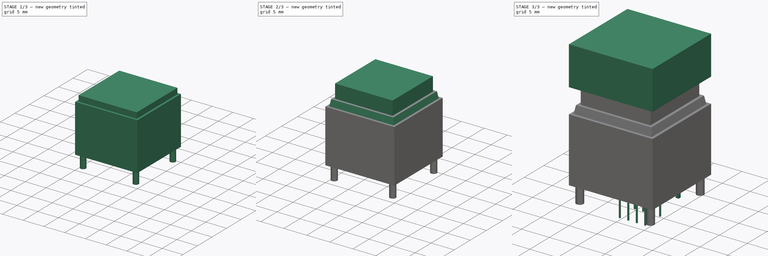
[diagram: build sequence overview — one tinted view per stage of 3, left to right]
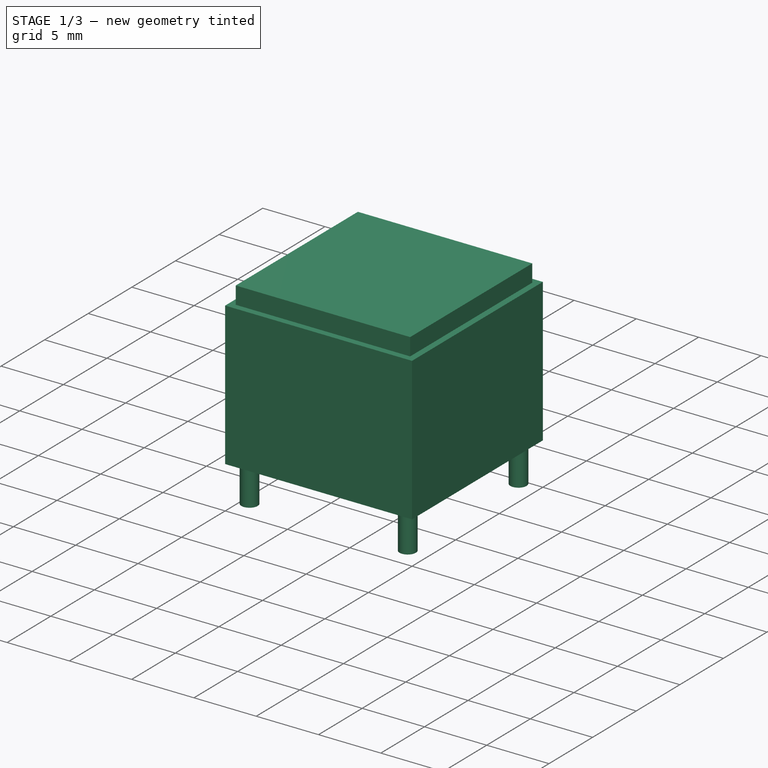
[diagram: stage 1 of 3 — iso view after this stage's code; geometry added in this stage tinted green]
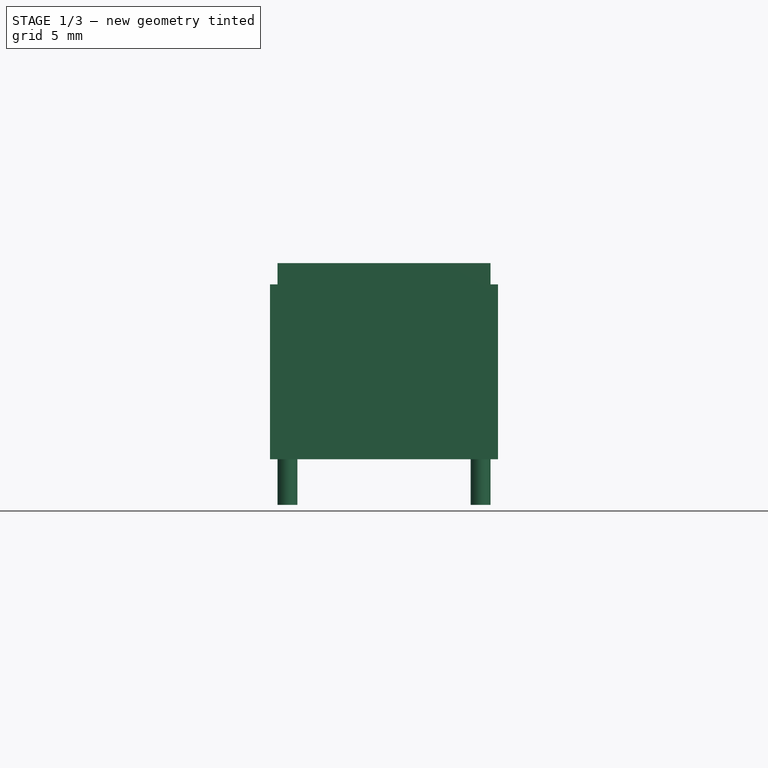
[diagram: stage 1 of 3 — front view after this stage's code; geometry added in this stage tinted green]
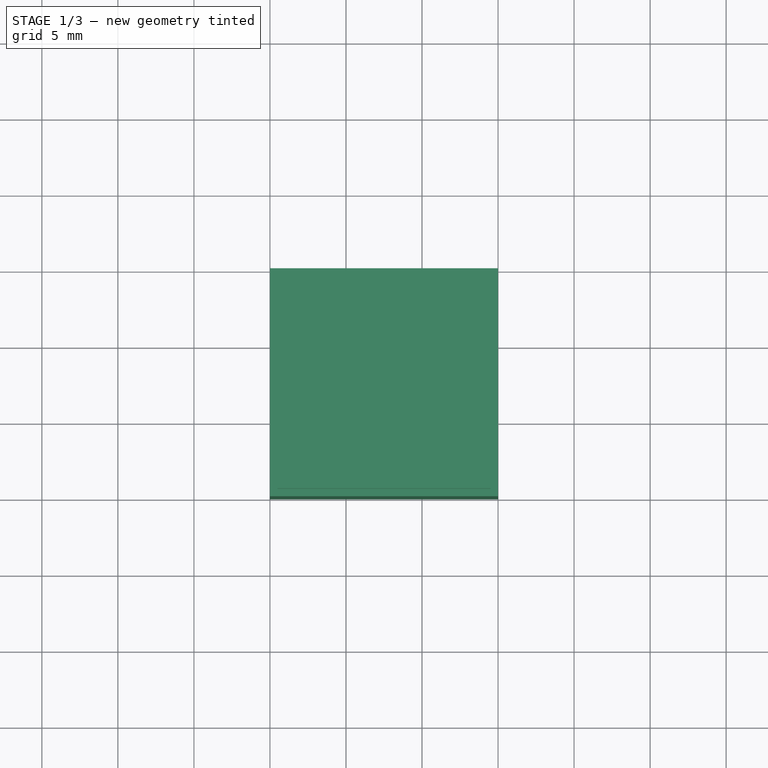
[diagram: stage 1 of 3 — top view after this stage's code; geometry added in this stage tinted green]
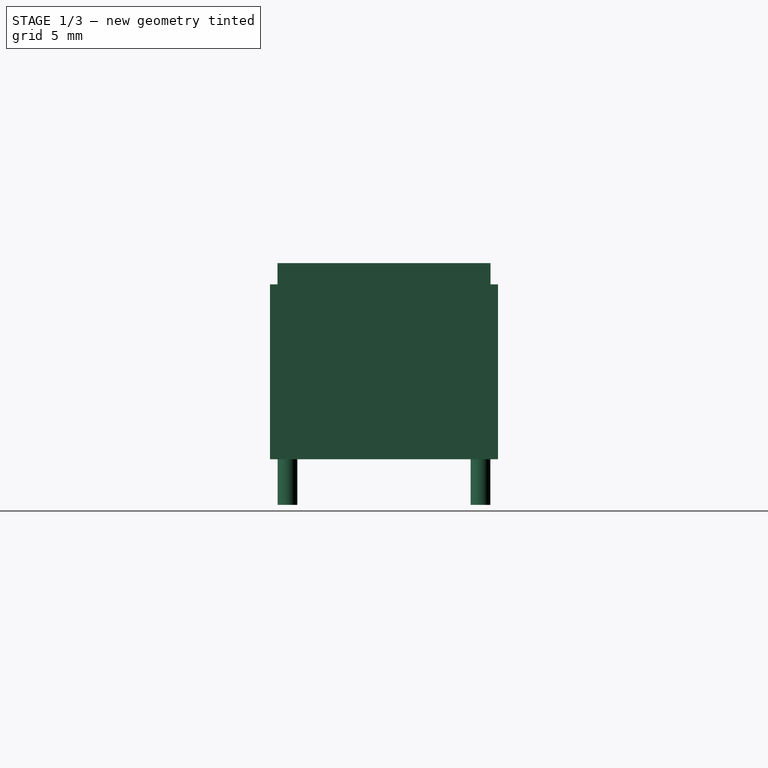
[diagram: stage 1 of 3 — right view after this stage's code; geometry added in this stage tinted green]
FCSTD DOCUMENT  (FreeCAD 0.19R24291 (Git))
Label: PB06-B-WT-RGB-NN-QY
License: All rights reserved
LicenseURL: http://en.wikipedia.org/wiki/All_rights_reserved
objects: Sketcher::SketchObject×7, PartDesign::Pad×7, PartDesign::Plane×4, PartDesign::Chamfer×1, PartDesign::Body×1
note: 28 computed .brp shape members not serialized (recipe doc carries the construction recipe); baked Part::Feature solids carry a one-line shape summary decoded from their .brp

FEATURE [Sketcher::SketchObject] Sketch  label="Base"
  FullyConstrained = true
  MapMode = 5
  Support = -> [XY_Plane]
  sketch-geometry (4):
    g0: LineSegment StartX=0 StartY=0 StartZ=0 EndX=15 EndY=0 EndZ=0
    g1: LineSegment StartX=15 StartY=0 StartZ=0 EndX=15 EndY=15 EndZ=0
    g2: LineSegment StartX=15 StartY=15 StartZ=0 EndX=0 EndY=15 EndZ=0
    g3: LineSegment StartX=0 StartY=15 StartZ=0 EndX=0 EndY=0 EndZ=0
  constraints (11):
    c: Coincident(g0,g1)
    c: Coincident(g1,g2)
    c: Coincident(g2,g3)
    c: Coincident(g3,g0)
    c: Horizontal(g0)
    c: Horizontal(g2)
    c: Vertical(g1)
    c: Vertical(g3)
    c: Coincident(g0,g-1)
    c: DistanceY(g3,g3) = 15
    c: DistanceX(g2,g2) = 15
FEATURE [PartDesign::Pad] Pad
  Direction = (1,1,1)
  Length = 11.5
  Length2 = 100
  Profile = -> Sketch
  Type = 0
FEATURE [PartDesign::Plane] DatumPlane
  Length = 60
  MapMode = 2
  ResizeMode = 0
  Support = -> [Pad]
  Width = 60
FEATURE [Sketcher::SketchObject] Sketch001
  ExternalGeometry = -> [Sketch]
  FullyConstrained = true
  MapMode = 5
  Support = -> [DatumPlane]
  sketch-geometry (4):
    g0: Circle CenterX=1.15 CenterY=1.15 CenterZ=0 NormalX=0 NormalY=0 NormalZ=1 AngleXU=0 Radius=0.65
    g1: Circle CenterX=1.15 CenterY=13.85 CenterZ=0 NormalX=0 NormalY=0 NormalZ=1 AngleXU=0 Radius=0.65
    g2: Circle CenterX=13.85 CenterY=13.85 CenterZ=0 NormalX=0 NormalY=0 NormalZ=1 AngleXU=0 Radius=0.65
    g3: Circle CenterX=13.85 CenterY=1.15 CenterZ=0 NormalX=0 NormalY=0 NormalZ=1 AngleXU=0 Radius=0.65
  constraints (12):
    c: Diameter(g0) = 1.3
    c: Diameter(g2) = 1.3
    c: Diameter(g3) = 1.3
    c: Diameter(g1) = 1.3
    c: Distance(g0,g-5) = 1.15
    c: Distance(g0,g-4) = 1.15
    c: Distance(g3,g-5) = 1.15
    c: Distance(g3,g-6) = 1.15
    c: Distance(g2,g-6) = 1.15
    c: Distance(g2,g-3) = 1.15
    c: Distance(g1,g-4) = 1.15
    c: Distance(g1,g-3) = 1.15
FEATURE [PartDesign::Pad] Pad001
  BaseFeature = -> Pad
  Direction = (1,1,1)
  Length = 3
  Length2 = 100
  Profile = -> Sketch001
  Reversed = true
  Type = 0
FEATURE [PartDesign::Plane] DatumPlane001
  Length = 60
  MapMode = 5
  Placement = pos=(0,0,11.5) rot=(0,0,1;0rad)
  ResizeMode = 0
  Support = -> [Pad001]
  Width = 60
FEATURE [Sketcher::SketchObject] Sketch002
  ExternalGeometry = -> [Pad001]
  FullyConstrained = true
  MapMode = 5
  Placement = pos=(0,0,11.5) rot=(0,0,1;0rad)
  Support = -> [DatumPlane001]
  sketch-geometry (4):
    g0: LineSegment StartX=0.5 StartY=14.5 StartZ=0 EndX=14.5 EndY=14.5 EndZ=0
    g1: LineSegment StartX=14.5 StartY=14.5 StartZ=0 EndX=14.5 EndY=0.5 EndZ=0
    g2: LineSegment StartX=14.5 StartY=0.5 StartZ=0 EndX=0.5 EndY=0.5 EndZ=0
    g3: LineSegment StartX=0.5 StartY=0.5 StartZ=0 EndX=0.5 EndY=14.5 EndZ=0
  constraints (12):
    c: Coincident(g0,g1)
    c: Coincident(g1,g2)
    c: Coincident(g2,g3)
    c: Coincident(g3,g0)
    c: Horizontal(g0)
    c: Horizontal(g2)
    c: Vertical(g1)
    c: Vertical(g3)
    c: Distance(g0,g-3) = 0.5
    c: Distance(g1,g-5) = 0.5
    c: Distance(g0,g-6) = 0.5
    c: Distance(g0,g-4) = 0.5
FEATURE [PartDesign::Pad] Pad002
  BaseFeature = -> Pad001
  Direction = (1,1,1)
  Length = 1.4
  Length2 = 100
  Profile = -> Sketch002
  Type = 0
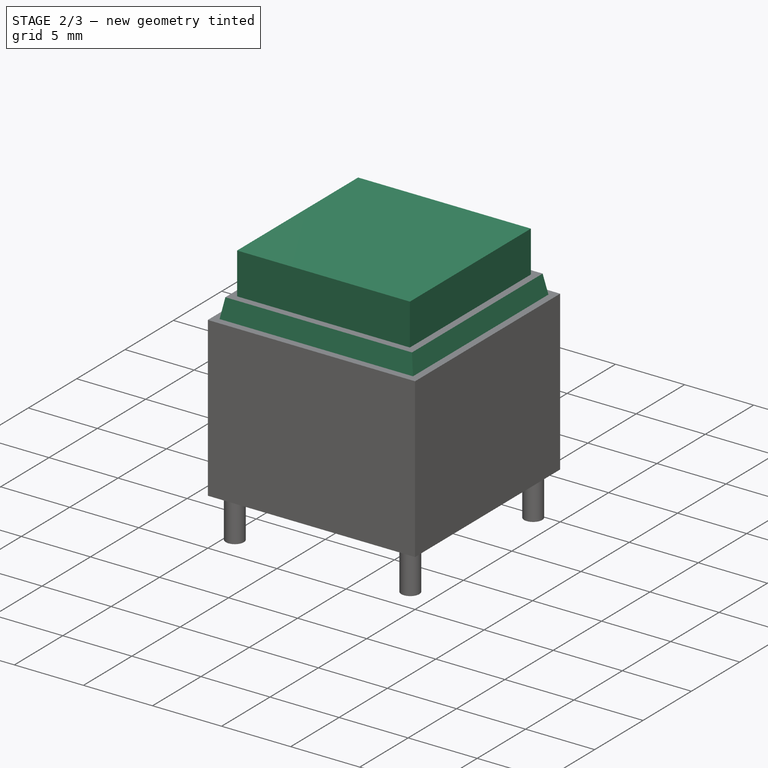
[diagram: stage 2 of 3 — iso view after this stage's code; geometry added in this stage tinted green]
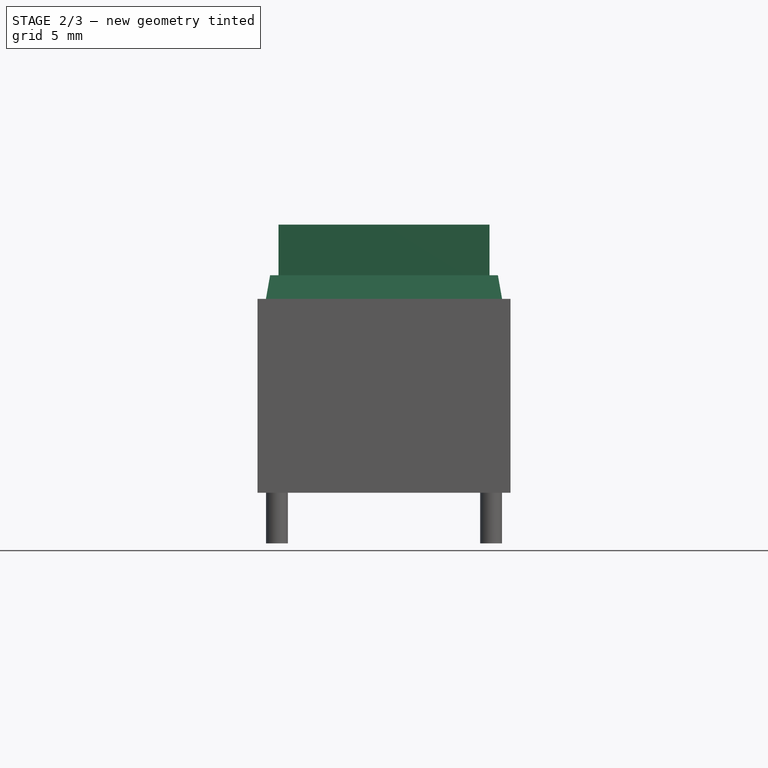
[diagram: stage 2 of 3 — front view after this stage's code; geometry added in this stage tinted green]
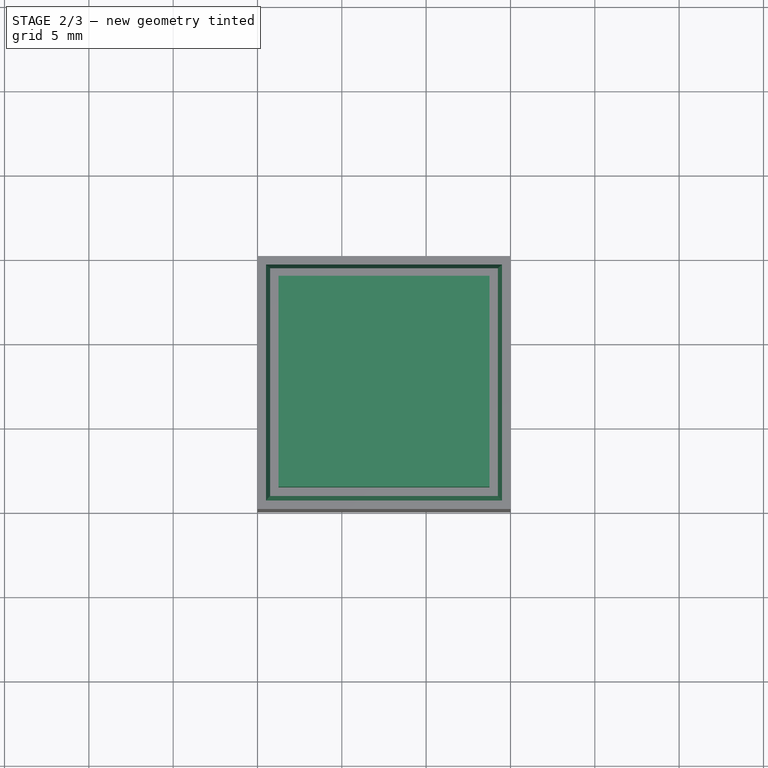
[diagram: stage 2 of 3 — top view after this stage's code; geometry added in this stage tinted green]
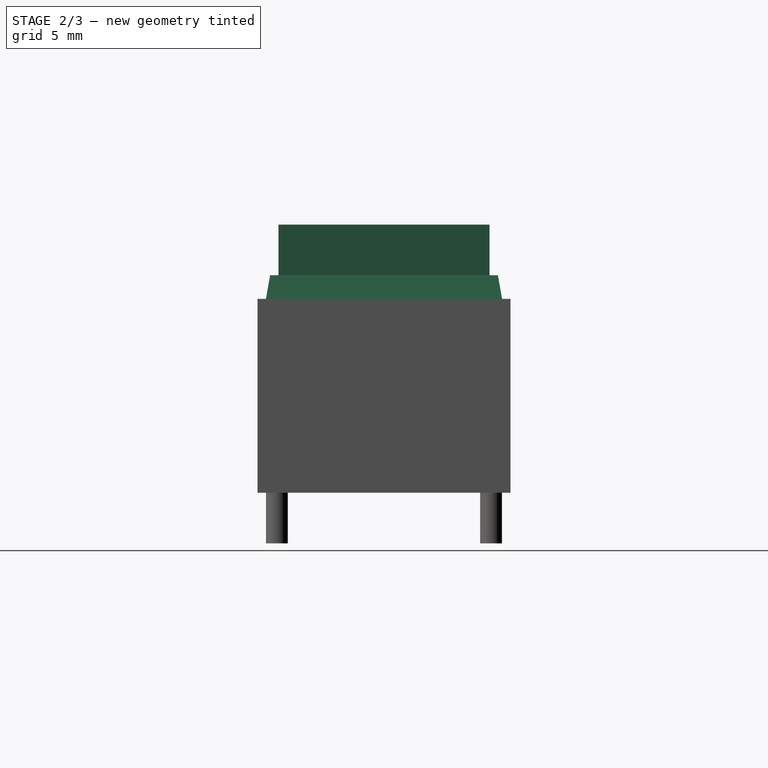
[diagram: stage 2 of 3 — right view after this stage's code; geometry added in this stage tinted green]
FEATURE [PartDesign::Chamfer] Chamfer
  Angle = 10
  Base = -> Pad002 [Edge36,Edge35,Edge33,Edge31]
  BaseFeature = -> Pad002
  ChamferType = 2
  FlipDirection = false
  Size = 1.399
  Size2 = 1
  SupportTransform = false
FEATURE [PartDesign::Plane] DatumPlane002
  Length = 60
  MapMode = 5
  Placement = pos=(0,0,12.9) rot=(0,0,1;0rad)
  ResizeMode = 0
  Support = -> [Chamfer]
  Width = 60
FEATURE [Sketcher::SketchObject] Sketch003
  ExternalGeometry = -> [Chamfer]
  FullyConstrained = true
  MapMode = 5
  Placement = pos=(0,0,12.9) rot=(0,0,1;0rad)
  Support = -> [DatumPlane002]
  sketch-geometry (4):
    g0: LineSegment StartX=1.24668 StartY=13.7533 StartZ=0 EndX=13.7533 EndY=13.7533 EndZ=0
    g1: LineSegment StartX=13.7533 StartY=13.7533 StartZ=0 EndX=13.7533 EndY=1.24668 EndZ=0
    g2: LineSegment StartX=13.7533 StartY=1.24668 StartZ=0 EndX=1.24668 EndY=1.24668 EndZ=0
    g3: LineSegment StartX=1.24668 StartY=1.24668 StartZ=0 EndX=1.24668 EndY=13.7533 EndZ=0
  constraints (12):
    c: Coincident(g0,g1)
    c: Coincident(g1,g2)
    c: Coincident(g2,g3)
    c: Coincident(g3,g0)
    c: Horizontal(g0)
    c: Horizontal(g2)
    c: Vertical(g1)
    c: Vertical(g3)
    c: Distance(g0,g-6) = 0.5
    c: Distance(g1,g-5) = 0.5
    c: Distance(g2,g-4) = 0.5
    c: Distance(g0,g-3) = 0.5
FEATURE [PartDesign::Pad] Pad003
  BaseFeature = -> Chamfer
  Direction = (1,1,1)
  Length = 3
  Length2 = 100
  Profile = -> Sketch003
  Type = 0
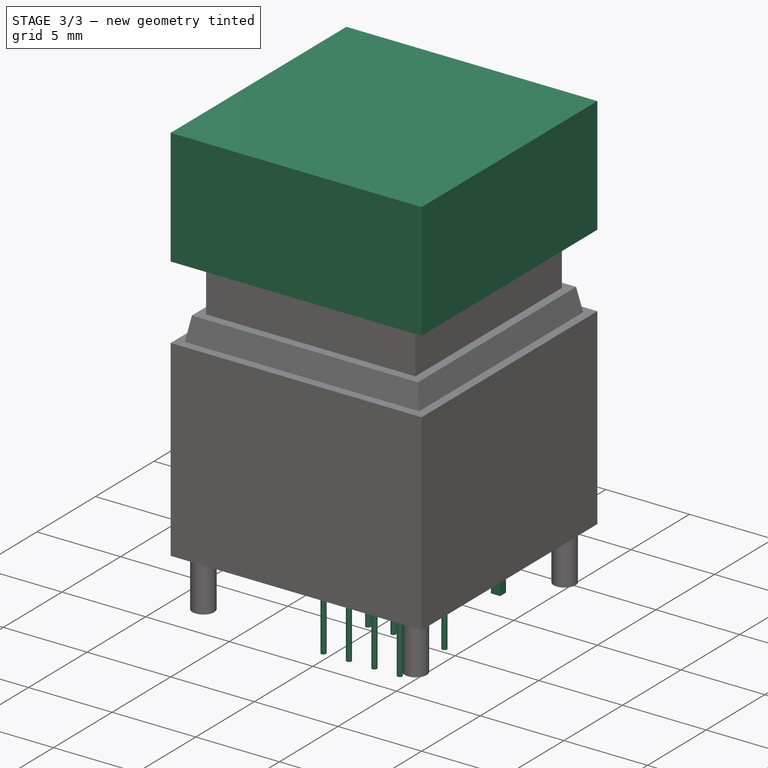
[diagram: stage 3 of 3 — iso view after this stage's code; geometry added in this stage tinted green]
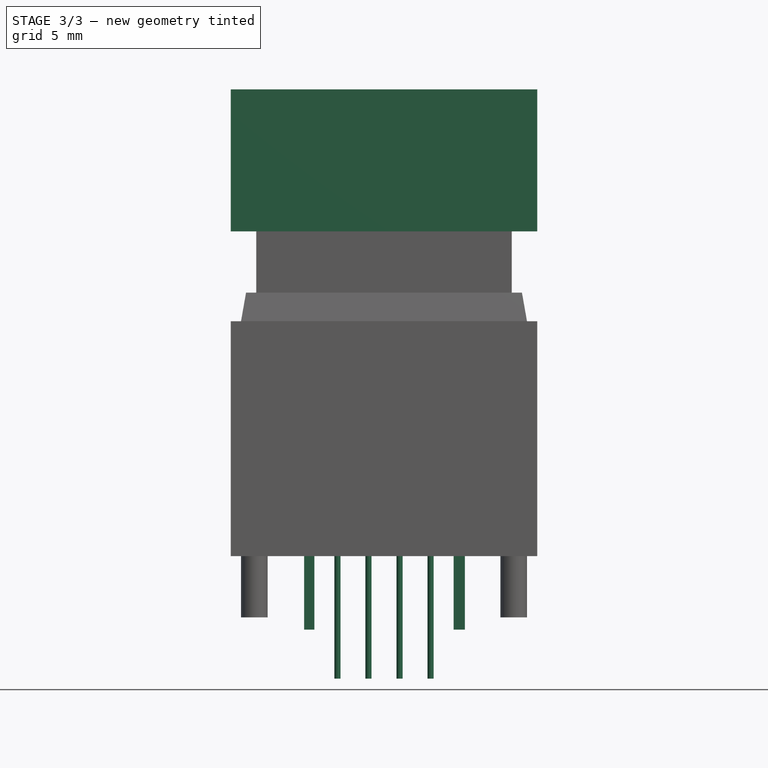
[diagram: stage 3 of 3 — front view after this stage's code; geometry added in this stage tinted green]
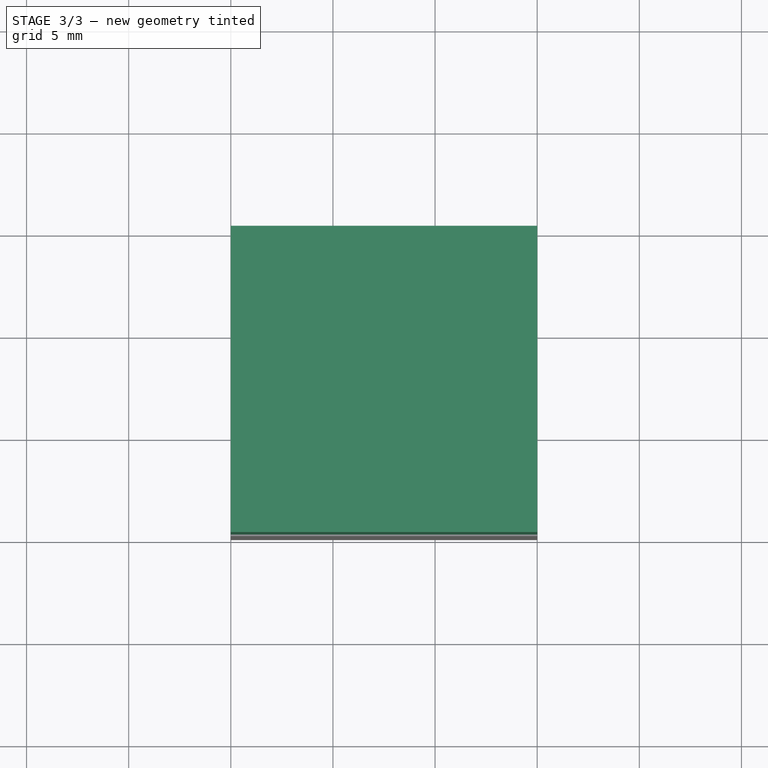
[diagram: stage 3 of 3 — top view after this stage's code; geometry added in this stage tinted green]
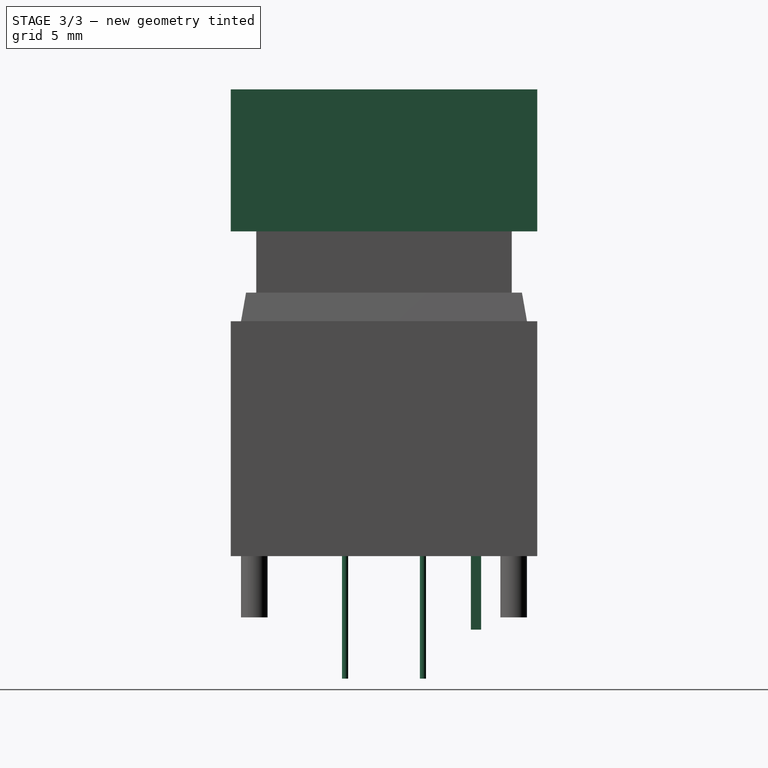
[diagram: stage 3 of 3 — right view after this stage's code; geometry added in this stage tinted green]
FEATURE [PartDesign::Plane] DatumPlane003
  Length = 60
  MapMode = 5
  Placement = pos=(0,0,15.9) rot=(0,0,1;0rad)
  ResizeMode = 0
  Support = -> [Pad003]
  Width = 60
FEATURE [Sketcher::SketchObject] Sketch004
  ExternalGeometry = -> [Pad003]
  FullyConstrained = true
  MapMode = 5
  Placement = pos=(0,0,15.9) rot=(0,0,1;0rad)
  Support = -> [Pad003]
  sketch-geometry (4):
    g0: LineSegment StartX=0 StartY=15 StartZ=0 EndX=15 EndY=15 EndZ=0
    g1: LineSegment StartX=15 StartY=15 StartZ=0 EndX=15 EndY=0 EndZ=0
    g2: LineSegment StartX=15 StartY=0 StartZ=0 EndX=0 EndY=0 EndZ=0
    g3: LineSegment StartX=0 StartY=0 StartZ=0 EndX=0 EndY=15 EndZ=0
  constraints (10):
    c: Coincident(g0,g1)
    c: Coincident(g1,g2)
    c: Coincident(g2,g3)
    c: Coincident(g3,g0)
    c: Horizontal(g0)
    c: Horizontal(g2)
    c: Vertical(g1)
    c: Vertical(g3)
    c: Coincident(g0,g-6)
    c: Coincident(g1,g-5)
FEATURE [PartDesign::Pad] Pad004
  BaseFeature = -> Pad003
  Direction = (1,1,1)
  Length = 6.95
  Length2 = 100
  Profile = -> Sketch004
  Type = 0
FEATURE [Sketcher::SketchObject] Sketch005
  ExternalGeometry = -> [Sketch,Sketch001]
  FullyConstrained = true
  MapMode = 5
  Support = -> [DatumPlane]
  sketch-geometry (10):
    g0: Circle CenterX=5.22 CenterY=5.595 CenterZ=0 NormalX=0 NormalY=0 NormalZ=1 AngleXU=0 Radius=0.15
    g1: Circle CenterX=9.78 CenterY=5.595 CenterZ=0 NormalX=0 NormalY=0 NormalZ=1 AngleXU=0 Radius=0.15
    g2: Circle CenterX=5.22 CenterY=9.405 CenterZ=0 NormalX=0 NormalY=0 NormalZ=1 AngleXU=0 Radius=0.15
    g3: Circle CenterX=6.74 CenterY=9.405 CenterZ=0 NormalX=0 NormalY=0 NormalZ=1 AngleXU=0 Radius=0.15
    g4: Circle CenterX=6.74 CenterY=5.595 CenterZ=0 NormalX=0 NormalY=0 NormalZ=1 AngleXU=0 Radius=0.15
    g5: Circle CenterX=8.26 CenterY=5.595 CenterZ=0 NormalX=0 NormalY=0 NormalZ=1 AngleXU=0 Radius=0.15
    g6: Circle CenterX=8.26 CenterY=9.405 CenterZ=0 NormalX=0 NormalY=0 NormalZ=1 AngleXU=0 Radius=0.15
    g7: Circle CenterX=9.78 CenterY=9.405 CenterZ=0 NormalX=0 NormalY=0 NormalZ=1 AngleXU=0 Radius=0.15
    g8: LineSegment StartX=0 StartY=7.5 StartZ=0 EndX=15 EndY=7.5 EndZ=0
    g9: LineSegment StartX=7.5 StartY=15 StartZ=0 EndX=7.5 EndY=0 EndZ=0
  constraints (26):
    c: Diameter(g0) = 0.3
    c: Diameter(g1) = 0.3
    c: Diameter(g2) = 0.3
    c: Diameter(g3) = 0.3
    c: Diameter(g7) = 0.3
    c: Diameter(g6) = 0.3
    c: Diameter(g5) = 0.3
    c: Diameter(g4) = 0.3
    c: PointOnObject(g8,g-5)
    c: Horizontal(g8)
    c: Symmetric(g-3,g-3,g8)
    c: PointOnObject(g9,g-6)
    c: Vertical(g9)
    c: Symmetric(g-4,g-4,g9)
    c: Distance(g7,g8) = 1.905
    c: Distance(g6,g8) = 1.905
    c: Distance(g3,g8) = 1.905
    c: Distance(g2,g8) = 1.905
    c: Symmetric(g2,g0,g8)
    c: Symmetric(g3,g4,g8)
    c: Symmetric(g6,g5,g8)
    c: Symmetric(g7,g1,g8)
    c: Distance(g3,g9) = 0.76
    c: Distance(g2,g3) = 1.52
    c: Distance(g6,g9) = 0.76
    c: Distance(g7,g6) = 1.52
FEATURE [PartDesign::Pad] Pad005
  BaseFeature = -> Pad004
  Direction = (1,1,1)
  Length = 6
  Length2 = 100
  Profile = -> Sketch005
  Reversed = true
  Type = 0
FEATURE [Sketcher::SketchObject] Sketch006
  ExternalGeometry = -> [Sketch,Sketch005]
  FullyConstrained = true
  MapMode = 5
  Support = -> [DatumPlane]
  sketch-geometry (10):
    g0: LineSegment StartX=3.59 StartY=12.255 StartZ=0 EndX=4.09 EndY=12.255 EndZ=0
    g1: LineSegment StartX=4.09 StartY=12.255 StartZ=0 EndX=4.09 EndY=11.755 EndZ=0
    g2: LineSegment StartX=4.09 StartY=11.755 StartZ=0 EndX=3.59 EndY=11.755 EndZ=0
    g3: LineSegment StartX=3.59 StartY=11.755 StartZ=0 EndX=3.59 EndY=12.255 EndZ=0
    g4: LineSegment StartX=10.91 StartY=12.255 StartZ=0 EndX=11.46 EndY=12.255 EndZ=0
    g5: LineSegment StartX=11.46 StartY=12.255 StartZ=0 EndX=11.46 EndY=11.755 EndZ=0
    g6: LineSegment StartX=11.46 StartY=11.755 StartZ=0 EndX=10.91 EndY=11.755 EndZ=0
    g7: LineSegment StartX=10.91 StartY=11.755 StartZ=0 EndX=10.91 EndY=12.255 EndZ=0
    g8: LineSegment StartX=7.5 StartY=15 StartZ=0 EndX=7.5 EndY=0 EndZ=0
    g9: LineSegment StartX=0 StartY=7.5 StartZ=0 EndX=15 EndY=7.5 EndZ=0
  constraints (29):
    c: Coincident(g0,g1)
    c: Coincident(g1,g2)
    c: Coincident(g2,g3)
    c: Coincident(g3,g0)
    c: Horizontal(g0)
    c: Horizontal(g2)
    c: Vertical(g1)
    c: Vertical(g3)
    c: Coincident(g4,g5)
    c: Coincident(g5,g6)
    c: Coincident(g6,g7)
    c: Coincident(g7,g4)
    c: Horizontal(g4)
    c: Horizontal(g6)
    c: Vertical(g5)
    c: Vertical(g7)
    c: DistanceY(g1,g1) = 0.5
    c: DistanceY(g5,g5) = 0.5
    c: DistanceX(g2,g2) = 0.5
    c: DistanceX(g6,g6) = 0.55
    c: PointOnObject(g8,g-5)
    c: Vertical(g8)
    c: PointOnObject(g9,g-6)
    c: Horizontal(g9)
    c: Symmetric(g-3,g-3,g8)
    c: Symmetric(g-4,g-4,g9)
    c: Distance(g-7,g6) = 2.35
    c: Distance(g1,g6) = 6.82
    c: Symmetric(g0,g4,g8)
FEATURE [PartDesign::Pad] Pad006
  BaseFeature = -> Pad005
  Direction = (1,1,1)
  Length = 3.6
  Length2 = 100
  Profile = -> Sketch006
  Reversed = true
  Type = 0
FEATURE [PartDesign::Body] Body
  Group = -> [Sketch,Pad,DatumPlane,Sketch001,Pad001,DatumPlane001,Sketch002,Pad002,Chamfer,DatumPlane002,Sketch003,Pad003,DatumPlane003,Sketch004,Pad004,Sketch005,Pad005,Sketch006,Pad006]
  Origin = -> Origin
  Tip = -> Pad006
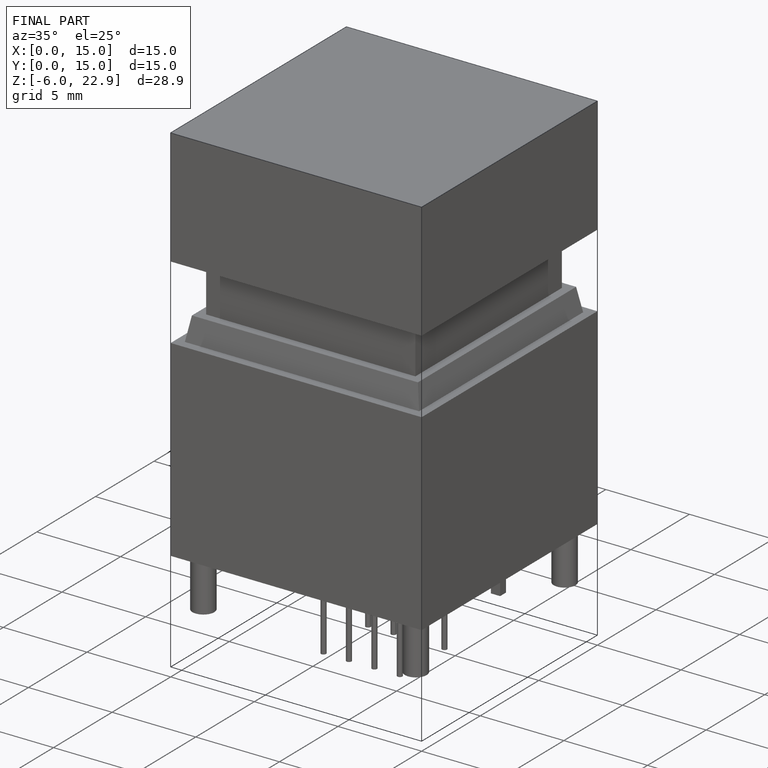
[diagram: finished part — iso view with bounding-box wireframe]
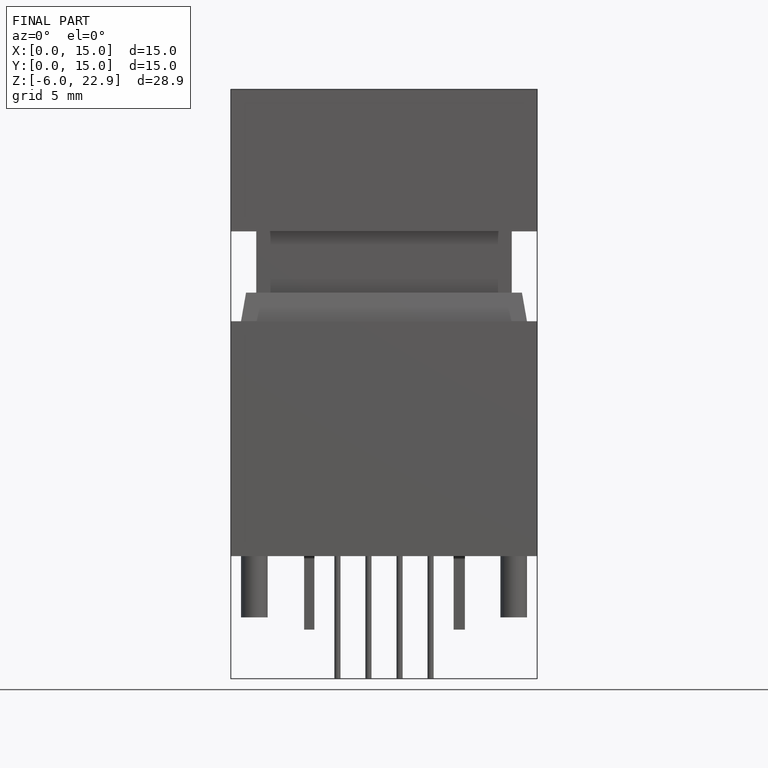
[diagram: finished part — front view with bounding-box wireframe]
